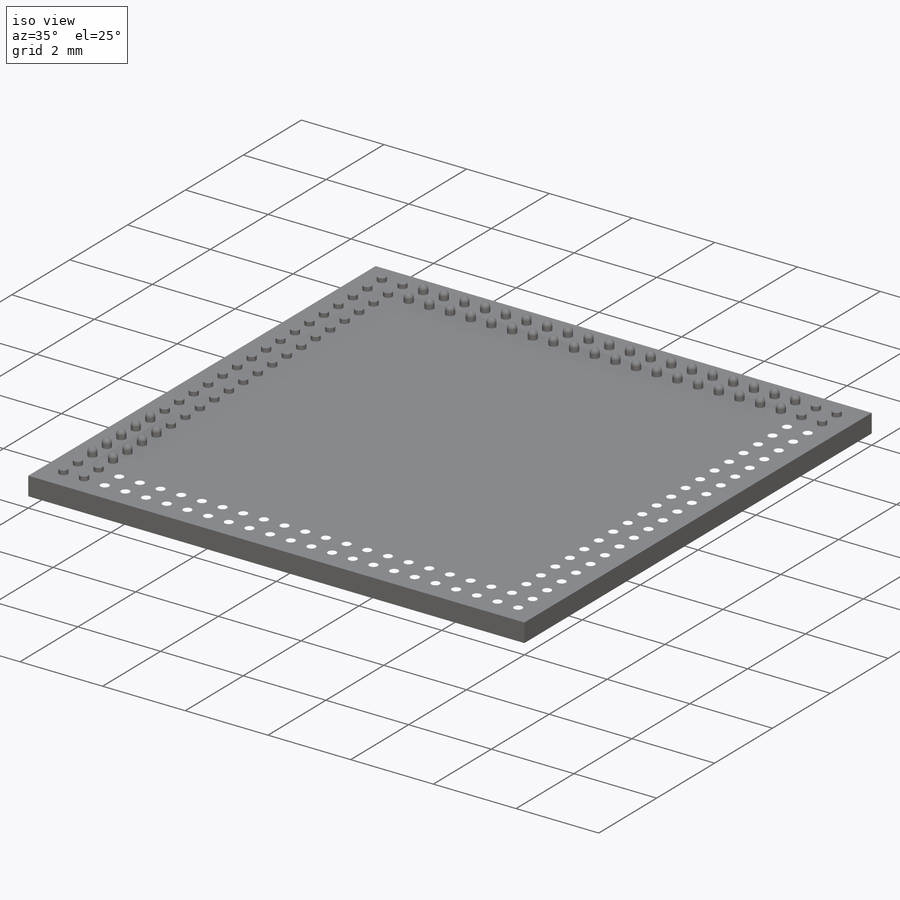
[diagram: iso view]
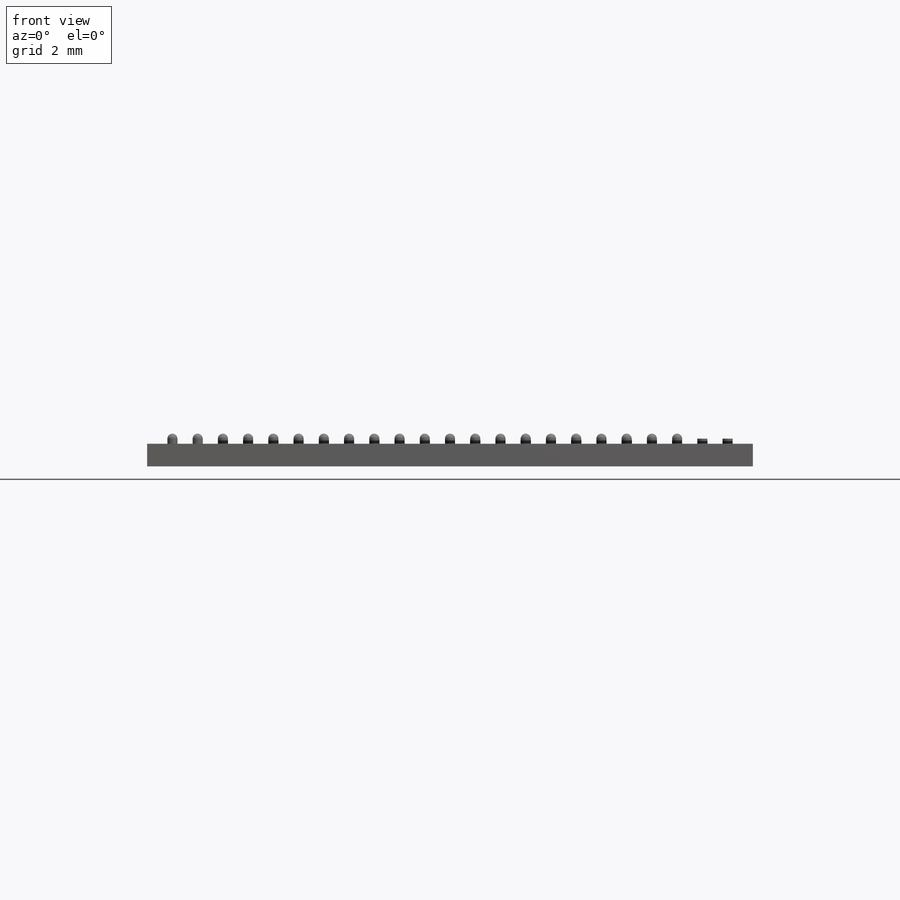
[diagram: front view]
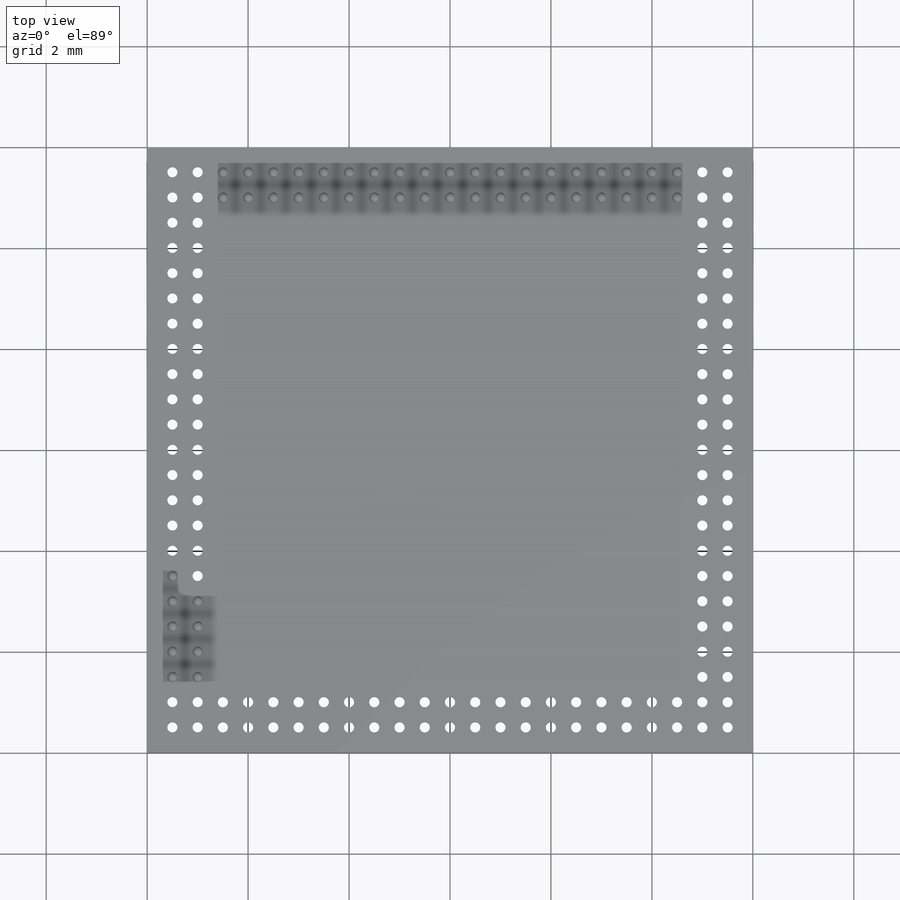
[diagram: top view]
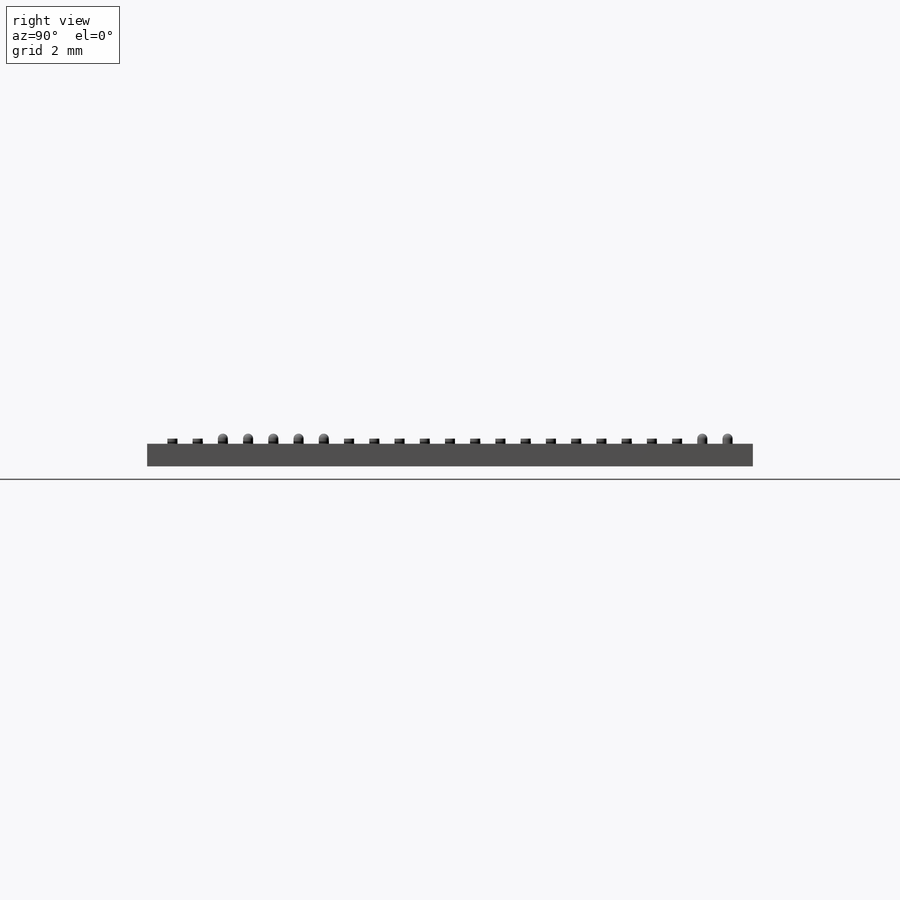
[diagram: right view]
SOLIDWORKS PART (.sldprt)
format: sldprt  version: not decoded by parser v0  size: 685,568 bytes
history: native  units: mm
features: sketch x4, extrude x2, material x1, fillet x1, pattern_linear x1, pattern_circular x1, cut_extrude x1 (+12 scaffold rows collapsed)
feature tree (23):
  scaffold x12  (default folders/planes/origin — collapsed)
  material  "Material <not specified>"
  sketch  "Sketch1"  dims[D1=12.0mm D2=12.0mm]
  extrude  "Boss-Extrude1"  Depth=0.45mm
  sketch  "Sketch2"  dims[c1.D1=0.2mm c1.D3=0.2mm c1.D2=5.5mm c2.D3=5.5mm]
  extrude  "Boss-Extrude2"  Depth=0.2mm
  fillet  "Fillet1"  Radius=0.1mm
  pattern_linear  "LPattern1"  Count1=23 Count2=2 Spacing1=0.5mm Spacing2=0.5mm
  sketch  "Sketch3"
  pattern_circular  "CirPattern1"  Count=4 Angle=90deg
  sketch  "Sketch4"  dims[c1.D2=~0.318337mm c1.D3=0.4mm c1.D1=5.3mm c2.D2=5.3mm]
  cut_extrude  "Cut-Extrude1"  Depth=0.05mm
decode coverage: 9 of 10 modeling features carry decoded parameters
note: ~ marks probable driven/reference dimensions
note: suppression state not decoded; provenance and decode notes live in map.json
